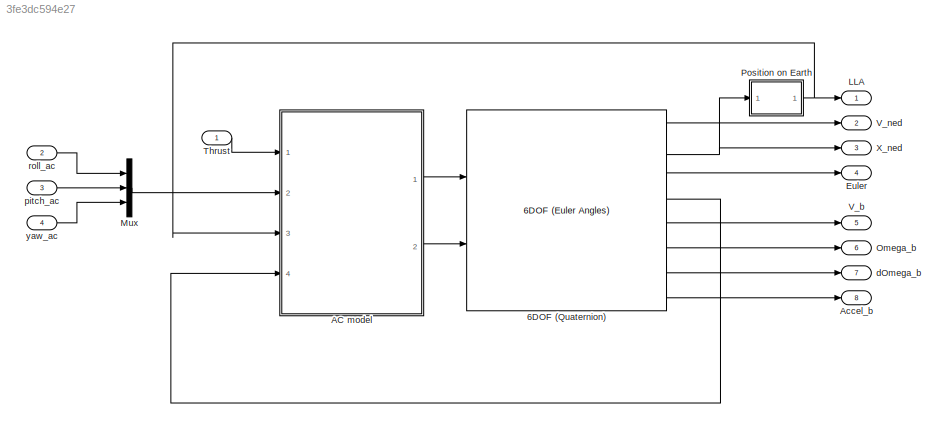
MODEL slx_3fe3dc594e27
KIND model
BLOCK [Reference] 6DOF (Quaternion)  REF=aerolib6dof2/6DOF (Euler Angles)
  Ports = [2, 8]
  SourceBlock = aerolib6dof2/6DOF (Euler Angles)
  SourceType = 6DOF EoM (Body Axis)
  Vm_0 = initVb
  eul_0 = initEuler
  inertia = inertia
  inertia_e = eye(3)
  inertia_f = 2*eye(3)
  k_quat = 1.0
  mass_0 = mass
  mass_e = 0.5
  mass_f = 2.0
  mtype = Fixed
  pm_0 = initAngRates
  rep = Quaternion
  units = Metric (MKS)
  vre_flag = on
  xme_0 = initPosNED
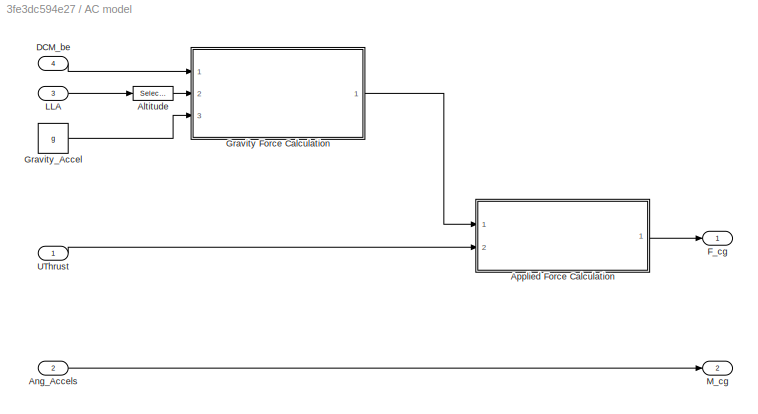
BLOCK [SubSystem] AC model
  Ports = [4, 2]
  RequestExecContextInheritance = off
BLOCK [Selector] AC model/Altitude
  Indices = [3]
  InputPortWidth = 3
  Ports = [1, 1]
BLOCK [Inport] AC model/Ang_Accels
  IconDisplay = Port number
  Port = 2
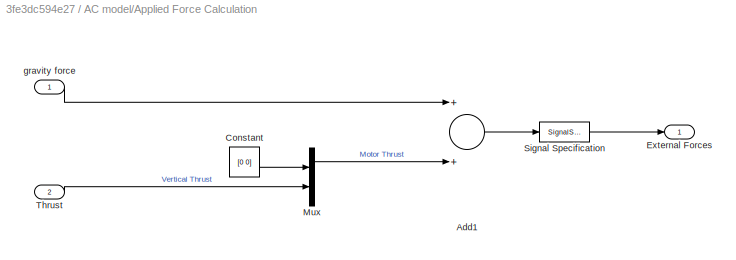
BLOCK [SubSystem] AC model/Applied Force Calculation
  Ports = [2, 1]
  RequestExecContextInheritance = off
BLOCK [Sum] AC model/Applied Force Calculation/Add1
  InputSameDT = off
  OutDataTypeStr = Inherit: Inherit via internal rule
  Ports = [2, 1]
  SaturateOnIntegerOverflow = off
BLOCK [Constant] AC model/Applied Force Calculation/Constant
  Value = [0 0]
BLOCK [Outport] AC model/Applied Force Calculation/External Forces
  IconDisplay = Port number
BLOCK [Mux] AC model/Applied Force Calculation/Mux
  DisplayOption = bar
  Inputs = 2
  Ports = [2, 1]
BLOCK [SignalSpecification] AC model/Applied Force Calculation/Signal Specification
  Dimensions = 3
BLOCK [Inport] AC model/Applied Force Calculation/Thrust
  IconDisplay = Port number
  Port = 2
BLOCK [Inport] AC model/Applied Force Calculation/gravity force
  IconDisplay = Port number
BLOCK [Inport] AC model/DCM_be
  IconDisplay = Port number
  Port = 4
BLOCK [Outport] AC model/F_cg
  IconDisplay = Port number
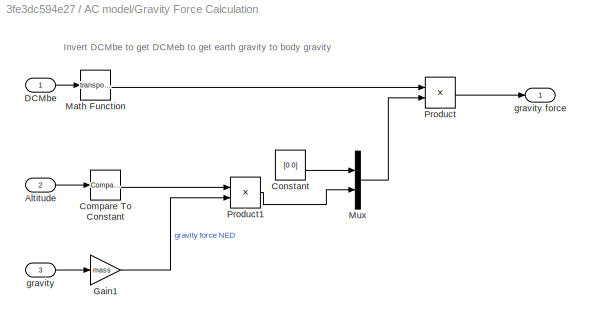
BLOCK [SubSystem] AC model/Gravity Force Calculation
  Ports = [3, 1]
  RequestExecContextInheritance = off
BLOCK [Inport] AC model/Gravity Force Calculation/Altitude
  IconDisplay = Port number
  Port = 2
BLOCK [Reference] AC model/Gravity Force Calculation/Compare To Constant  REF=simulink/Logic and Bit
Operations/Compare
To Constant
  OutDataTypeStr = boolean
  Ports = [1, 1]
  SourceBlock = simulink/Logic and Bit\nOperations/Compare\nTo Constant
  SourceType = Compare To Constant
  ZeroCross = on
  const = 0.0
  relop = >
BLOCK [Constant] AC model/Gravity Force Calculation/Constant
  Value = [0 0]
BLOCK [Inport] AC model/Gravity Force Calculation/DCMbe
  IconDisplay = Port number
BLOCK [Gain] AC model/Gravity Force Calculation/Gain1
  Gain = mass
  OutDataTypeStr = Inherit: Inherit via internal rule
  ParamDataTypeStr = Inherit: Inherit via internal rule
  SaturateOnIntegerOverflow = off
BLOCK [Math] AC model/Gravity Force Calculation/Math Function
  Operator = transpose
  Ports = [1, 1]
BLOCK [Mux] AC model/Gravity Force Calculation/Mux
  DisplayOption = bar
  Inputs = 2
  Ports = [2, 1]
BLOCK [Product] AC model/Gravity Force Calculation/Product
  InputSameDT = off
  Multiplication = Matrix(*)
  OutDataTypeStr = Inherit: Inherit via internal rule
  Ports = [2, 1]
  RndMeth = Floor
  SaturateOnIntegerOverflow = off
BLOCK [Product] AC model/Gravity Force Calculation/Product1
  InputSameDT = off
  OutDataTypeStr = Inherit: Inherit via internal rule
  Ports = [2, 1]
  RndMeth = Floor
  SaturateOnIntegerOverflow = off
BLOCK [Inport] AC model/Gravity Force Calculation/gravity
  IconDisplay = Port number
  Port = 3
BLOCK [Outport] AC model/Gravity Force Calculation/gravity force
  IconDisplay = Port number
BLOCK [Constant] AC model/Gravity_Accel
  Value = g
BLOCK [Inport] AC model/LLA
  IconDisplay = Port number
  Port = 3
BLOCK [Outport] AC model/M_cg
  IconDisplay = Port number
  Port = 2
BLOCK [Inport] AC model/UThrust
  IconDisplay = Port number
BLOCK [Outport] Accel_b
  IconDisplay = Port number
  Port = 8
BLOCK [Outport] Euler
  IconDisplay = Port number
  Port = 4
BLOCK [Outport] LLA
  IconDisplay = Port number
BLOCK [Mux] Mux
  DisplayOption = bar
  Inputs = 3
  Ports = [3, 1]
BLOCK [Outport] Omega_b
  IconDisplay = Port number
  Port = 6
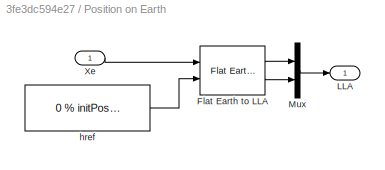
BLOCK [SubSystem] Position on Earth
  Ports = [1, 1]
  Priority = 1
  RequestExecContextInheritance = off
  TreatAsAtomicUnit = on
BLOCK [Reference] Position on Earth/Flat Earth to LLA  REF=aerolibtransform2/Flat Earth to LLA
  F = 1/298.257223563
  LL0 = initPosLLA(1:2)
  Ports = [2, 2]
  R = 6378137
  SourceBlock = aerolibtransform2/Flat Earth to LLA
  SourceType = Flat Earth to LLA
  psi = d_fn
  ptype = Earth (WGS84)
  units = Metric (MKS)
BLOCK [Outport] Position on Earth/LLA
  IconDisplay = Port number
BLOCK [Mux] Position on Earth/Mux
  DisplayOption = bar
  Inputs = 2
  Ports = [2, 1]
BLOCK [Inport] Position on Earth/Xe
  IconDisplay = Port number
BLOCK [Constant] Position on Earth/href
  Value = 0 % initPosLLA(3)
BLOCK [Inport] Thrust
  IconDisplay = Port number
BLOCK [Outport] V_b
  IconDisplay = Port number
  Port = 5
BLOCK [Outport] V_ned
  IconDisplay = Port number
  Port = 2
BLOCK [Outport] X_ned
  IconDisplay = Port number
  Port = 3
BLOCK [Outport] dOmega_b
  IconDisplay = Port number
  Port = 7
BLOCK [Inport] pitch_ac
  IconDisplay = Port number
  Port = 3
BLOCK [Inport] roll_ac
  IconDisplay = Port number
  Port = 2
BLOCK [Inport] yaw_ac
  IconDisplay = Port number
  Port = 4
ANNOTATION AC model/Gravity Force Calculation: Invert DCMbe to get DCMeb to get earth gravity to body gravity
LINE 6DOF (Quaternion):1 -> V_ned:1
NET 6DOF (Quaternion):2 -> Position on Earth:1, X_ned:1
LINE 6DOF (Quaternion):3 -> Euler:1
LINE 6DOF (Quaternion):4 -> AC model:4
LINE 6DOF (Quaternion):5 -> V_b:1
LINE 6DOF (Quaternion):6 -> Omega_b:1
LINE 6DOF (Quaternion):7 -> dOmega_b:1
LINE 6DOF (Quaternion):8 -> Accel_b:1
LINE AC model/Altitude:1 -> AC model/Gravity Force Calculation:2
LINE AC model/Ang_Accels:1 -> AC model/M_cg:1
LINE AC model/Applied Force Calculation/Add1:1 -> AC model/Applied Force Calculation/Signal Specification:1
LINE AC model/Applied Force Calculation/Constant:1 -> AC model/Applied Force Calculation/Mux:1
LINE AC model/Applied Force Calculation/Mux:1 -> AC model/Applied Force Calculation/Add1:2
LINE AC model/Applied Force Calculation/Signal Specification:1 -> AC model/Applied Force Calculation/External Forces:1
LINE AC model/Applied Force Calculation/Thrust:1 -> AC model/Applied Force Calculation/Mux:2
LINE AC model/Applied Force Calculation/gravity force:1 -> AC model/Applied Force Calculation/Add1:1
LINE AC model/Applied Force Calculation:1 -> AC model/F_cg:1
LINE AC model/DCM_be:1 -> AC model/Gravity Force Calculation:1
LINE AC model/Gravity Force Calculation/Altitude:1 -> AC model/Gravity Force Calculation/Compare To Constant:1
LINE AC model/Gravity Force Calculation/Compare To Constant:1 -> AC model/Gravity Force Calculation/Product1:1
LINE AC model/Gravity Force Calculation/Constant:1 -> AC model/Gravity Force Calculation/Mux:1
LINE AC model/Gravity Force Calculation/DCMbe:1 -> AC model/Gravity Force Calculation/Math Function:1
LINE AC model/Gravity Force Calculation/Gain1:1 -> AC model/Gravity Force Calculation/Product1:2
LINE AC model/Gravity Force Calculation/Math Function:1 -> AC model/Gravity Force Calculation/Product:1
LINE AC model/Gravity Force Calculation/Mux:1 -> AC model/Gravity Force Calculation/Product:2
LINE AC model/Gravity Force Calculation/Product1:1 -> AC model/Gravity Force Calculation/Mux:2
LINE AC model/Gravity Force Calculation/Product:1 -> AC model/Gravity Force Calculation/gravity force:1
LINE AC model/Gravity Force Calculation/gravity:1 -> AC model/Gravity Force Calculation/Gain1:1
LINE AC model/Gravity Force Calculation:1 -> AC model/Applied Force Calculation:1
LINE AC model/Gravity_Accel:1 -> AC model/Gravity Force Calculation:3
LINE AC model/LLA:1 -> AC model/Altitude:1
LINE AC model/UThrust:1 -> AC model/Applied Force Calculation:2
LINE AC model:1 -> 6DOF (Quaternion):1
LINE AC model:2 -> 6DOF (Quaternion):2
LINE Mux:1 -> AC model:2
LINE Position on Earth/Flat Earth to LLA:1 -> Position on Earth/Mux:1
LINE Position on Earth/Flat Earth to LLA:2 -> Position on Earth/Mux:2
LINE Position on Earth/Mux:1 -> Position on Earth/LLA:1
LINE Position on Earth/Xe:1 -> Position on Earth/Flat Earth to LLA:1
LINE Position on Earth/href:1 -> Position on Earth/Flat Earth to LLA:2
NET Position on Earth:1 -> AC model:3, LLA:1
LINE Thrust:1 -> AC model:1
LINE pitch_ac:1 -> Mux:2
LINE roll_ac:1 -> Mux:1
LINE yaw_ac:1 -> Mux:3
note: NET lines group one-source signal fan-out (src -> all destinations, sorted); 1:1 wires keep LINE
